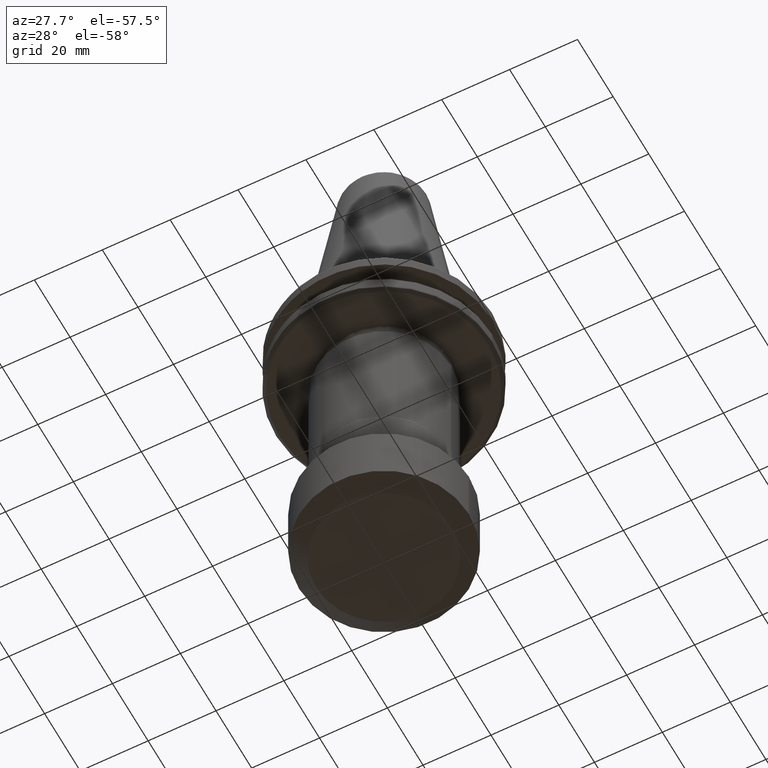
[diagram: clean part render]
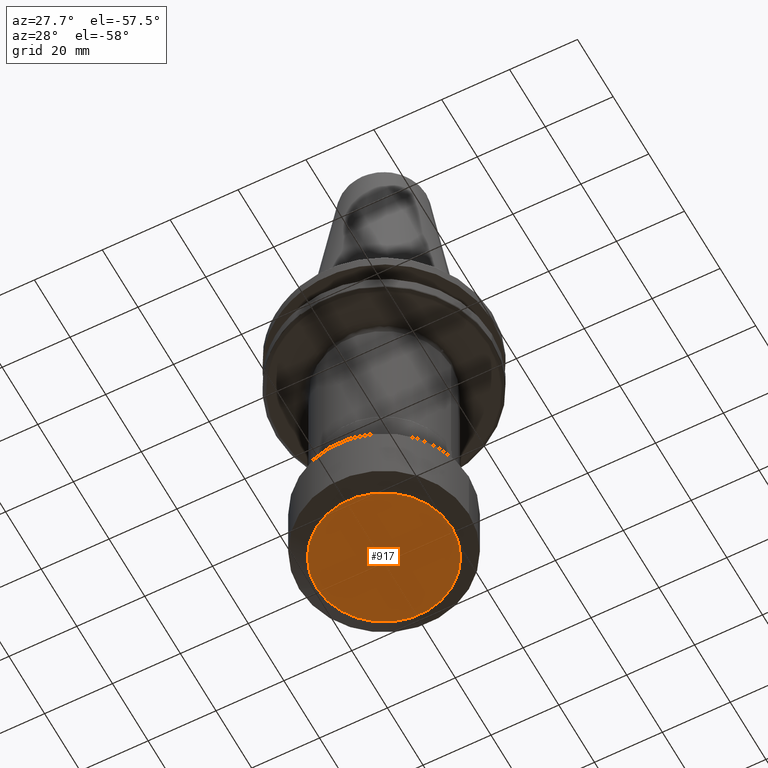
[diagram: same view with one face highlighted and labeled with its STEP entity id]
A machine part, auxiliary view. The second image highlights one B-rep face of the part: STEP entity #917.
In plain terms, the highlighted planar face has unit normal (-0, 0, -1).
Its self-contained STEP definition (entity closure, byte-faithful):
#31 = EDGE_CURVE ( 'NONE', #3407, #2298, #550, .T. ) ;
#37 = CARTESIAN_POINT ( 'NONE',  ( 0.0000000000000000000, 0.0000000000000000000, -99.99999999996110500 ) ) ;
#59 = DIRECTION ( 'NONE',  ( -0.0000000000000000000, -0.0000000000000000000, -1.000000000000000000 ) ) ;
#153 = DIRECTION ( 'NONE',  ( -0.0000000000000000000, 0.0000000000000000000, -1.000000000000000000 ) ) ;
#177 = EDGE_LOOP ( 'NONE', ( #1502, #3496 ) ) ;
#251 = FACE_OUTER_BOUND ( 'NONE', #177, .T. ) ;
#254 = CARTESIAN_POINT ( 'NONE',  ( 19.99999999997754300, 0.0000000000000000000, -99.99999999996110500 ) ) ;
#417 = CARTESIAN_POINT ( 'NONE',  ( -19.99999999997754300, 2.755455298080169800E-015, -99.99999999996110500 ) ) ;
#550 = CIRCLE ( 'NONE', #890, 19.99999999997754300 ) ;
#890 = AXIS2_PLACEMENT_3D ( 'NONE', #37, #59, #2140 ) ;
#917 = ADVANCED_FACE ( 'NONE', ( #251 ), #2339, .T. ) ;
#1009 = AXIS2_PLACEMENT_3D ( 'NONE', #3829, #3822, #3821 ) ;
#1218 = EDGE_CURVE ( 'NONE', #2298, #3407, #3353, .T. ) ;
#1299 = AXIS2_PLACEMENT_3D ( 'NONE', #3607, #153, #2351 ) ;
#1502 = ORIENTED_EDGE ( 'NONE', *, *, #31, .T. ) ;
#2140 = DIRECTION ( 'NONE',  ( -1.000000000000000000, 0.0000000000000000000, 0.0000000000000000000 ) ) ;
#2298 = VERTEX_POINT ( 'NONE', #417 ) ;
#2339 = PLANE ( 'NONE',  #1299 ) ;
#2351 = DIRECTION ( 'NONE',  ( -1.000000000000000000, 0.0000000000000000000, 0.0000000000000000000 ) ) ;
#3353 = CIRCLE ( 'NONE', #1009, 19.99999999997754300 ) ;
#3407 = VERTEX_POINT ( 'NONE', #254 ) ;
#3496 = ORIENTED_EDGE ( 'NONE', *, *, #1218, .T. ) ;
#3607 = CARTESIAN_POINT ( 'NONE',  ( 0.0000000000000000000, 0.0000000000000000000, -99.99999999996110500 ) ) ;
#3821 = DIRECTION ( 'NONE',  ( -1.000000000000000000, 0.0000000000000000000, 0.0000000000000000000 ) ) ;
#3822 = DIRECTION ( 'NONE',  ( -0.0000000000000000000, -0.0000000000000000000, -1.000000000000000000 ) ) ;
#3829 = CARTESIAN_POINT ( 'NONE',  ( 0.0000000000000000000, 0.0000000000000000000, -99.99999999996110500 ) ) ;